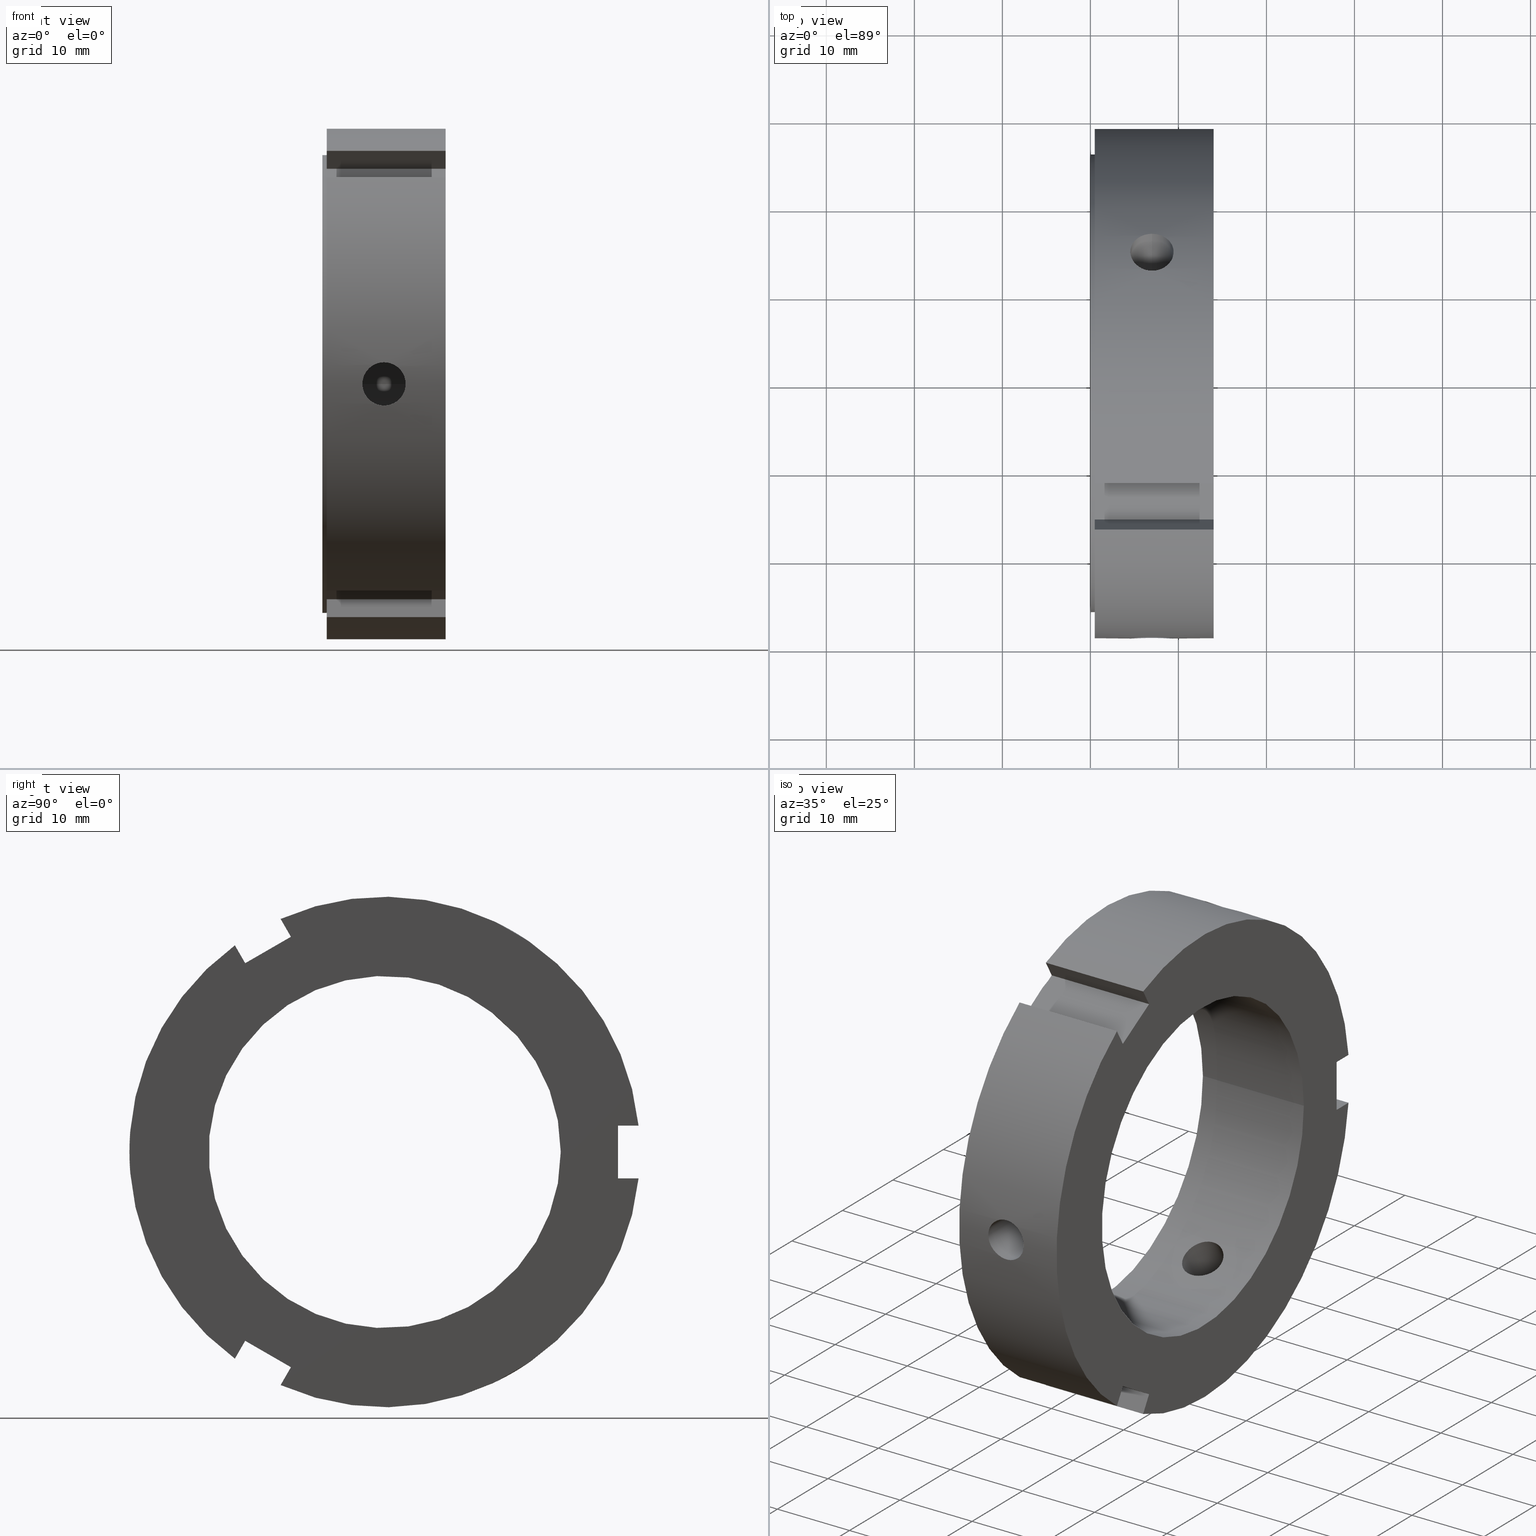
[diagram: canonical four-view strip — front | top / right | iso, engineering-drawing reading convention]
A machine part, canonical four-view strip (front | top / right | iso — engineering-drawing reading convention). The complete STEP part file that produces these views, byte-faithful:
ISO-10303-21;
HEADER;
/****************************************************************
 * Generated by software with PDE/Lib inside                    *
 * PDElib Version v51a, created Thu 01/14/2010                  *
 * ITI Transcendata (http://www.transcendata.com/)              *
 ****************************************************************/
FILE_DESCRIPTION((''),'2;1');
FILE_NAME('\\\\CAD-SVN\\cad-svn\\\X2\628088538AB2\X0\\\FKD\X2\88FD4F5C\X0\SP\\\X2\90E854C130E930A430D630E930EA\X0\\\HP \X2\30A230C330D730C730FC30C87528\X0\CAD\X2\30C730FC30BFFF0867007D42FF09\X0\\\3D data\\ZMT\\FKD ZMT 40.stp','2014-07-16T14:45:17',('fkd-ct1n'),(''),'Autodesk Inventor 2011','Autodesk Inventor 2011','');
FILE_SCHEMA(('AUTOMOTIVE_DESIGN { 1 0 10303 214 1 1 1 1 }'));
ENDSEC;
DATA;
#5=APPLICATION_CONTEXT('automotive design');
#6=APPLICATION_PROTOCOL_DEFINITION('International Standard','automotive_design',2001,#5);
#7=PRODUCT_CONTEXT('',#5,'mechanical');
#8=PRODUCT('FKD ZMT 40','FKD ZMT 40',$,(#7));
#9=PRODUCT_RELATED_PRODUCT_CATEGORY('part',$,(#8));
#10=PRODUCT_DEFINITION_FORMATION('',$,#8);
#11=PRODUCT_DEFINITION_CONTEXT('part definition',#5,'design');
#12=PRODUCT_DEFINITION('',$,#10,#11);
#18=(NAMED_UNIT(*)PLANE_ANGLE_UNIT()SI_UNIT($,.RADIAN.));
#19=DIMENSIONAL_EXPONENTS(0.0,0.0,0.0,0.0,0.0,0.0,0.0);
#20=PLANE_ANGLE_MEASURE_WITH_UNIT(PLANE_ANGLE_MEASURE(0.017453292500000),#18);
#24=(CONVERSION_BASED_UNIT('DEGREE',#20)NAMED_UNIT(#19)PLANE_ANGLE_UNIT());
#28=(NAMED_UNIT(*)SI_UNIT($,.STERADIAN.)SOLID_ANGLE_UNIT());
#32=(LENGTH_UNIT()NAMED_UNIT(*)SI_UNIT(.MILLI.,.METRE.));
#34=UNCERTAINTY_MEASURE_WITH_UNIT(LENGTH_MEASURE(0.010000000000000),#32,'DISTANCE_ACCURACY_VALUE','');
#36=(GEOMETRIC_REPRESENTATION_CONTEXT(3)GLOBAL_UNCERTAINTY_ASSIGNED_CONTEXT((#34))GLOBAL_UNIT_ASSIGNED_CONTEXT((#24,#28,#32))REPRESENTATION_CONTEXT('None','None'));
#37=AXIS2_PLACEMENT_3D('',#38,#39,#40);
#38=CARTESIAN_POINT('',(0.0,0.0,0.0));
#39=DIRECTION('',(0.0,0.0,1.0));
#40=DIRECTION('',(1.0,0.0,0.0));
#41=SHAPE_REPRESENTATION('',(#37),#36);
#42=PRODUCT_DEFINITION_SHAPE('','',#12);
#43=SHAPE_DEFINITION_REPRESENTATION(#42,#41);
#49=(NAMED_UNIT(*)PLANE_ANGLE_UNIT()SI_UNIT($,.RADIAN.));
#50=DIMENSIONAL_EXPONENTS(0.0,0.0,0.0,0.0,0.0,0.0,0.0);
#51=PLANE_ANGLE_MEASURE_WITH_UNIT(PLANE_ANGLE_MEASURE(0.017453292500000),#49);
#55=(CONVERSION_BASED_UNIT('DEGREE',#51)NAMED_UNIT(#50)PLANE_ANGLE_UNIT());
#59=(NAMED_UNIT(*)SI_UNIT($,.STERADIAN.)SOLID_ANGLE_UNIT());
#63=(LENGTH_UNIT()NAMED_UNIT(*)SI_UNIT(.MILLI.,.METRE.));
#65=UNCERTAINTY_MEASURE_WITH_UNIT(LENGTH_MEASURE(0.000001000000000),#63,'DISTANCE_ACCURACY_VALUE','');
#67=(GEOMETRIC_REPRESENTATION_CONTEXT(3)GLOBAL_UNCERTAINTY_ASSIGNED_CONTEXT((#65))GLOBAL_UNIT_ASSIGNED_CONTEXT((#55,#59,#63))REPRESENTATION_CONTEXT('','3D'));
#68=CARTESIAN_POINT('',(13.999999999999995,-15.848076211353330,-21.449673200287620));
#69=DIRECTION('',(0.0,-0.866025403784438,0.500000000000001));
#70=DIRECTION('',(-1.0,0.0,0.0));
#71=AXIS2_PLACEMENT_3D('',#68,#69,#70);
#72=PLANE('',#71);
#73=CARTESIAN_POINT('',(0.499999999999994,-15.848076211353330,-21.449673200287620));
#74=VERTEX_POINT('',#73);
#75=CARTESIAN_POINT('',(0.499999999999994,-17.020281313209288,-23.479991993593590));
#76=VERTEX_POINT('',#75);
#77=CARTESIAN_POINT('',(0.499999999999992,-15.848076211353334,-21.449673200287624));
#78=DIRECTION('',(0.0,-0.500000000000001,-0.866025403784438));
#79=VECTOR('',#78,2.344410203711917);
#80=LINE('',#77,#79);
#81=EDGE_CURVE('',#74,#76,#80,.T.);
#82=ORIENTED_EDGE('',*,*,#81,.F.);
#83=CARTESIAN_POINT('',(13.999999999999995,-15.848076211353330,-21.449673200287620));
#84=VERTEX_POINT('',#83);
#85=CARTESIAN_POINT('',(13.999999999999995,-15.848076211353330,-21.449673200287620));
#86=DIRECTION('',(-1.0,0.0,0.0));
#87=VECTOR('',#86,13.500000000000000);
#88=LINE('',#85,#87);
#89=EDGE_CURVE('',#84,#74,#88,.T.);
#90=ORIENTED_EDGE('',*,*,#89,.F.);
#91=CARTESIAN_POINT('',(13.999999999999995,-17.020281313209288,-23.479991993593590));
#92=VERTEX_POINT('',#91);
#93=CARTESIAN_POINT('',(13.999999999999995,-17.020281313209296,-23.479991993593593));
#94=DIRECTION('',(0.0,0.500000000000000,0.866025403784439));
#95=VECTOR('',#94,2.344410203711920);
#96=LINE('',#93,#95);
#97=EDGE_CURVE('',#92,#84,#96,.T.);
#98=ORIENTED_EDGE('',*,*,#97,.F.);
#99=CARTESIAN_POINT('',(0.499999999999994,-17.020281313209288,-23.479991993593586));
#100=DIRECTION('',(1.0,0.0,0.0));
#101=VECTOR('',#100,13.500000000000000);
#102=LINE('',#99,#101);
#103=EDGE_CURVE('',#76,#92,#102,.T.);
#104=ORIENTED_EDGE('',*,*,#103,.F.);
#105=EDGE_LOOP('',(#82,#90,#98,#104));
#106=FACE_OUTER_BOUND('',#105,.T.);
#107=ADVANCED_FACE('',(#106),#72,.F.);
#108=CARTESIAN_POINT('',(13.999999999999995,-11.901923788646705,-26.614736709748719));
#109=DIRECTION('',(0.0,0.866025403784438,-0.500000000000001));
#110=DIRECTION('',(1.0,0.0,0.0));
#111=AXIS2_PLACEMENT_3D('',#108,#109,#110);
#112=PLANE('',#111);
#113=CARTESIAN_POINT('',(0.499999999999994,-11.824128890502656,-26.479991993593586));
#114=VERTEX_POINT('',#113);
#115=CARTESIAN_POINT('',(0.499999999999994,-10.651923788646700,-24.449673200287624));
#116=VERTEX_POINT('',#115);
#117=CARTESIAN_POINT('',(0.499999999999992,-11.824128890502664,-26.479991993593593));
#118=DIRECTION('',(0.0,0.500000000000000,0.866025403784438));
#119=VECTOR('',#118,2.344410203711912);
#120=LINE('',#117,#119);
#121=EDGE_CURVE('',#114,#116,#120,.T.);
#122=ORIENTED_EDGE('',*,*,#121,.F.);
#123=CARTESIAN_POINT('',(13.999999999999995,-11.824128890502656,-26.479991993593586));
#124=VERTEX_POINT('',#123);
#125=CARTESIAN_POINT('',(13.999999999999995,-11.824128890502656,-26.479991993593586));
#126=DIRECTION('',(-1.0,0.0,0.0));
#127=VECTOR('',#126,13.500000000000000);
#128=LINE('',#125,#127);
#129=EDGE_CURVE('',#124,#114,#128,.T.);
#130=ORIENTED_EDGE('',*,*,#129,.F.);
#131=CARTESIAN_POINT('',(13.999999999999995,-10.651923788646700,-24.449673200287624));
#132=VERTEX_POINT('',#131);
#133=CARTESIAN_POINT('',(13.999999999999995,-10.651923788646707,-24.449673200287624));
#134=DIRECTION('',(0.0,-0.500000000000000,-0.866025403784439));
#135=VECTOR('',#134,2.344410203711916);
#136=LINE('',#133,#135);
#137=EDGE_CURVE('',#132,#124,#136,.T.);
#138=ORIENTED_EDGE('',*,*,#137,.F.);
#139=CARTESIAN_POINT('',(13.999999999999995,-10.651923788646700,-24.449673200287624));
#140=DIRECTION('',(-1.0,0.0,0.0));
#141=VECTOR('',#140,13.500000000000000);
#142=LINE('',#139,#141);
#143=EDGE_CURVE('',#132,#116,#142,.T.);
#144=ORIENTED_EDGE('',*,*,#143,.T.);
#145=EDGE_LOOP('',(#122,#130,#138,#144));
#146=FACE_OUTER_BOUND('',#145,.T.);
#147=ADVANCED_FACE('',(#146),#112,.F.);
#148=CARTESIAN_POINT('',(13.999999999999995,-10.651923788646700,-24.449673200287624));
#149=DIRECTION('',(0.0,0.500000000000001,0.866025403784438));
#150=DIRECTION('',(0.0,-0.866025403784438,0.500000000000000));
#151=AXIS2_PLACEMENT_3D('',#148,#149,#150);
#152=PLANE('',#151);
#153=CARTESIAN_POINT('',(0.499999999999992,-10.651923788646704,-24.449673200287627));
#154=DIRECTION('',(0.0,-0.866025403784438,0.500000000000001));
#155=VECTOR('',#154,6.000000000000004);
#156=LINE('',#153,#155);
#157=EDGE_CURVE('',#116,#74,#156,.T.);
#158=ORIENTED_EDGE('',*,*,#157,.F.);
#159=ORIENTED_EDGE('',*,*,#143,.F.);
#160=CARTESIAN_POINT('',(13.999999999999995,-15.848076211353339,-21.449673200287624));
#161=DIRECTION('',(0.0,0.866025403784438,-0.500000000000000));
#162=VECTOR('',#161,6.000000000000004);
#163=LINE('',#160,#162);
#164=EDGE_CURVE('',#84,#132,#163,.T.);
#165=ORIENTED_EDGE('',*,*,#164,.F.);
#166=ORIENTED_EDGE('',*,*,#89,.T.);
#167=EDGE_LOOP('',(#158,#159,#165,#166));
#168=FACE_OUTER_BOUND('',#167,.T.);
#169=ADVANCED_FACE('',(#168),#152,.F.);
#170=CARTESIAN_POINT('',(6.999999999999994,41.551100442152276,71.968617076205291));
#171=DIRECTION('',(0.0,-0.500000000000001,-0.866025403784438));
#172=DIRECTION('',(-1.0,0.0,0.0));
#173=AXIS2_PLACEMENT_3D('',#170,#171,#172);
#174=CYLINDRICAL_SURFACE('',#173,2.458500000000000);
#175=CARTESIAN_POINT('',(6.999999999999994,16.576924133421485,23.795074832300671));
#176=VERTEX_POINT('',#175);
#177=CARTESIAN_POINT('',(6.999999999999994,16.576924133421482,23.795074832300664));
#178=CARTESIAN_POINT('',(7.308854109261286,16.576924133421482,23.795074832300664));
#179=CARTESIAN_POINT('',(7.638193209310600,16.526173710312712,23.830682386971436));
#180=CARTESIAN_POINT('',(8.243872746317132,16.318706258117345,23.973228121055243));
#181=CARTESIAN_POINT('',(8.520225825376883,16.161853221030182,24.079914487860226));
#182=CARTESIAN_POINT('',(8.956617835114848,15.797030106812811,24.320806337736158));
#183=CARTESIAN_POINT('',(9.145800030290948,15.564673501506839,24.471059387746251));
#184=CARTESIAN_POINT('',(9.396745207676926,15.049971309549328,24.790929235256701));
#185=CARTESIAN_POINT('',(9.458499999999994,14.767475035670753,24.960309925902706));
#186=CARTESIAN_POINT('',(9.458499999999994,14.232524964329274,25.269163493594718));
#187=CARTESIAN_POINT('',(9.396745207676927,13.944588846379993,25.429122097925013));
#188=CARTESIAN_POINT('',(9.145800030290950,13.410222336552533,25.714932347788530));
#189=CARTESIAN_POINT('',(8.956617835114846,13.163921075594715,25.841032545715560));
#190=CARTESIAN_POINT('',(8.520225825376887,12.772891056928845,26.036532705577589));
#191=CARTESIAN_POINT('',(8.243872746317134,12.602071434494677,26.119028236953326));
#192=CARTESIAN_POINT('',(7.638193209310602,12.374889481479322,26.227427453971046));
#193=CARTESIAN_POINT('',(7.308854109261286,12.318677223013399,26.253574832300664));
#194=CARTESIAN_POINT('',(6.691145890738701,12.318677223013399,26.253574832300664));
#195=CARTESIAN_POINT('',(6.361806790689386,12.374889481479322,26.227427453971046));
#196=CARTESIAN_POINT('',(5.756127253682852,12.602071434494677,26.119028236953330));
#197=CARTESIAN_POINT('',(5.479774174623101,12.772891056928843,26.036532705577589));
#198=CARTESIAN_POINT('',(5.043382164885140,13.163921075594718,25.841032545715560));
#199=CARTESIAN_POINT('',(4.854199969709036,13.410222336552533,25.714932347788526));
#200=CARTESIAN_POINT('',(4.603254792323060,13.944588846379990,25.429122097925010));
#201=CARTESIAN_POINT('',(4.541499999999994,14.232524964329274,25.269163493594718));
#202=CARTESIAN_POINT('',(4.541499999999994,14.767475035670753,24.960309925902706));
#203=CARTESIAN_POINT('',(4.603254792323063,15.049971309549328,24.790929235256701));
#204=CARTESIAN_POINT('',(4.854199969709040,15.564673501506839,24.471059387746251));
#205=CARTESIAN_POINT('',(5.043382164885140,15.797030106812811,24.320806337736158));
#206=CARTESIAN_POINT('',(5.479774174623104,16.161853221030182,24.079914487860226));
#207=CARTESIAN_POINT('',(5.756127253682860,16.318706258117345,23.973228121055243));
#208=CARTESIAN_POINT('',(6.361806790689394,16.526173710312712,23.830682386971436));
#209=CARTESIAN_POINT('',(6.691145890738702,16.576924133421482,23.795074832300664));
#210=CARTESIAN_POINT('',(6.999999999999994,16.576924133421482,23.795074832300664));
#211=B_SPLINE_CURVE_WITH_KNOTS('',3,(#177,#178,#179,#180,#181,#182,#183,#184,#185,#186,#187,#188,#189,#190,#191,#192,#193,#194,#195,#196,#197,#198,#199,#200,#201,#202,#203,#204,#205,#206,#207,#208,#209,#210),.UNSPECIFIED.,.T.,.U.,(4,2,2,2,2,2,2,2,2,2,2,2,2,2,2,2,4),(0.0,0.092656232778388,0.185312465556775,0.277968535864379,0.370624606171983,0.463280676479586,0.555936746787190,0.648592979565578,0.741249212343965,0.833905445122353,0.926561677900741,1.019217748208344,1.111873818515948,1.204529888823552,1.297185959131155,1.389842191909543,1.482498424687931),.UNSPECIFIED.);
#212=EDGE_CURVE('',#176,#176,#211,.T.);
#213=ORIENTED_EDGE('',*,*,#212,.F.);
#214=EDGE_LOOP('',(#213));
#215=FACE_OUTER_BOUND('',#214,.T.);
#216=CARTESIAN_POINT('',(6.999999999999994,12.053283089021921,15.959898708196686));
#217=VERTEX_POINT('',#216);
#218=CARTESIAN_POINT('',(6.999999999999995,12.053283089021916,15.959898708196686));
#219=CARTESIAN_POINT('',(6.690968271254704,12.053283089021916,15.959898708196686));
#220=CARTESIAN_POINT('',(6.361553815856706,12.003722752344197,15.997705947766910));
#221=CARTESIAN_POINT('',(5.755924004486799,11.800698361727441,16.148048599668137));
#222=CARTESIAN_POINT('',(5.479681708979354,11.647038071503006,16.260210193384989));
#223=CARTESIAN_POINT('',(5.043475951151598,11.288302570213933,16.511273594329129));
#224=CARTESIAN_POINT('',(4.854320105292359,11.059187832783078,16.666921301230648));
#225=CARTESIAN_POINT('',(4.603323519938373,10.548962118054192,16.994449076431216));
#226=CARTESIAN_POINT('',(4.541499999999993,10.267627237686163,17.165993417968185));
#227=CARTESIAN_POINT('',(4.541499999999995,9.732372762313844,17.475022733409347));
#228=CARTESIAN_POINT('',(4.603323519938373,9.443143564483341,17.632893716010230));
#229=CARTESIAN_POINT('',(4.854320105292357,8.904383333350213,17.910998259029231));
#230=CARTESIAN_POINT('',(5.043475951151601,8.655031096417281,18.031593588574996));
#231=CARTESIAN_POINT('',(5.479681708979353,8.258236062594600,18.216735945458606));
#232=CARTESIAN_POINT('',(5.755924004486794,8.084271127994633,18.293728863487431));
#233=CARTESIAN_POINT('',(6.361553815856701,7.852558376867471,18.394381817398781));
#234=CARTESIAN_POINT('',(6.690968271254702,7.795036178613833,18.418398708196683));
#235=CARTESIAN_POINT('',(7.309031728745286,7.795036178613833,18.418398708196683));
#236=CARTESIAN_POINT('',(7.638446184143284,7.852558376867470,18.394381817398781));
#237=CARTESIAN_POINT('',(8.244075995513191,8.084271127994633,18.293728863487431));
#238=CARTESIAN_POINT('',(8.520318291020635,8.258236062594600,18.216735945458606));
#239=CARTESIAN_POINT('',(8.956524048848387,8.655031096417281,18.031593588574996));
#240=CARTESIAN_POINT('',(9.145679894707632,8.904383333350213,17.910998259029231));
#241=CARTESIAN_POINT('',(9.396676480061615,9.443143564483341,17.632893716010230));
#242=CARTESIAN_POINT('',(9.458499999999994,9.732372762313844,17.475022733409347));
#243=CARTESIAN_POINT('',(9.458499999999994,10.267627237686163,17.165993417968185));
#244=CARTESIAN_POINT('',(9.396676480061617,10.548962118054190,16.994449076431216));
#245=CARTESIAN_POINT('',(9.145679894707630,11.059187832783078,16.666921301230651));
#246=CARTESIAN_POINT('',(8.956524048848388,11.288302570213933,16.511273594329133));
#247=CARTESIAN_POINT('',(8.520318291020633,11.647038071503006,16.260210193384989));
#248=CARTESIAN_POINT('',(8.244075995513189,11.800698361727445,16.148048599668133));
#249=CARTESIAN_POINT('',(7.638446184143280,12.003722752344197,15.997705947766907));
#250=CARTESIAN_POINT('',(7.309031728745286,12.053283089021917,15.959898708196684));
#251=CARTESIAN_POINT('',(6.999999999999995,12.053283089021917,15.959898708196684));
#252=B_SPLINE_CURVE_WITH_KNOTS('',3,(#218,#219,#220,#221,#222,#223,#224,#225,#226,#227,#228,#229,#230,#231,#232,#233,#234,#235,#236,#237,#238,#239,#240,#241,#242,#243,#244,#245,#246,#247,#248,#249,#250,#251),.UNSPECIFIED.,.T.,.U.,(4,2,2,2,2,2,2,2,2,2,2,2,2,2,2,2,4),(0.0,0.092709518623587,0.185419037247175,0.278127831879523,0.370836626511872,0.463545421144219,0.556254215776567,0.648963734400154,0.741673253023742,0.834382771647329,0.927092290270916,1.019801084903264,1.112509879535611,1.205218674167960,1.297927468800308,1.390636987423896,1.483346506047483),.UNSPECIFIED.);
#253=EDGE_CURVE('',#217,#217,#252,.T.);
#254=ORIENTED_EDGE('',*,*,#253,.F.);
#255=EDGE_LOOP('',(#254));
#256=FACE_BOUND('',#255,.T.);
#257=ADVANCED_FACE('',(#215,#256),#174,.F.);
#258=CARTESIAN_POINT('',(13.999999999999995,-10.651923788646682,24.449673200287631));
#259=DIRECTION('',(0.0,0.866025403784439,0.500000000000000));
#260=DIRECTION('',(-1.0,0.0,0.0));
#261=AXIS2_PLACEMENT_3D('',#258,#259,#260);
#262=PLANE('',#261);
#263=CARTESIAN_POINT('',(0.499999999999994,-10.651923788646682,24.449673200287631));
#264=VERTEX_POINT('',#263);
#265=CARTESIAN_POINT('',(0.499999999999994,-11.824128890502639,26.479991993593597));
#266=VERTEX_POINT('',#265);
#267=CARTESIAN_POINT('',(0.499999999999993,-10.651923788646686,24.449673200287634));
#268=DIRECTION('',(0.0,-0.499999999999999,0.866025403784439));
#269=VECTOR('',#268,2.344410203711914);
#270=LINE('',#267,#269);
#271=EDGE_CURVE('',#264,#266,#270,.T.);
#272=ORIENTED_EDGE('',*,*,#271,.F.);
#273=CARTESIAN_POINT('',(13.999999999999995,-10.651923788646682,24.449673200287631));
#274=VERTEX_POINT('',#273);
#275=CARTESIAN_POINT('',(13.999999999999995,-10.651923788646682,24.449673200287631));
#276=DIRECTION('',(-1.0,0.0,0.0));
#277=VECTOR('',#276,13.500000000000000);
#278=LINE('',#275,#277);
#279=EDGE_CURVE('',#274,#264,#278,.T.);
#280=ORIENTED_EDGE('',*,*,#279,.F.);
#281=CARTESIAN_POINT('',(13.999999999999995,-11.824128890502639,26.479991993593597));
#282=VERTEX_POINT('',#281);
#283=CARTESIAN_POINT('',(13.999999999999995,-11.824128890502640,26.479991993593600));
#284=DIRECTION('',(0.0,0.500000000000000,-0.866025403784439));
#285=VECTOR('',#284,2.344410203711911);
#286=LINE('',#283,#285);
#287=EDGE_CURVE('',#282,#274,#286,.T.);
#288=ORIENTED_EDGE('',*,*,#287,.F.);
#289=CARTESIAN_POINT('',(0.499999999999994,-11.824128890502639,26.479991993593597));
#290=DIRECTION('',(1.0,0.0,0.0));
#291=VECTOR('',#290,13.500000000000000);
#292=LINE('',#289,#291);
#293=EDGE_CURVE('',#266,#282,#292,.T.);
#294=ORIENTED_EDGE('',*,*,#293,.F.);
#295=EDGE_LOOP('',(#272,#280,#288,#294));
#296=FACE_OUTER_BOUND('',#295,.T.);
#297=ADVANCED_FACE('',(#296),#262,.F.);
#298=CARTESIAN_POINT('',(13.999999999999995,-17.098076211353312,23.614736709748733));
#299=DIRECTION('',(0.0,-0.866025403784439,-0.500000000000000));
#300=DIRECTION('',(1.0,0.0,0.0));
#301=AXIS2_PLACEMENT_3D('',#298,#299,#300);
#302=PLANE('',#301);
#303=CARTESIAN_POINT('',(0.499999999999994,-17.020281313209267,23.479991993593600));
#304=VERTEX_POINT('',#303);
#305=CARTESIAN_POINT('',(0.499999999999994,-15.848076211353312,21.449673200287634));
#306=VERTEX_POINT('',#305);
#307=CARTESIAN_POINT('',(0.499999999999993,-17.020281313209267,23.479991993593600));
#308=DIRECTION('',(0.0,0.499999999999999,-0.866025403784439));
#309=VECTOR('',#308,2.344410203711910);
#310=LINE('',#307,#309);
#311=EDGE_CURVE('',#304,#306,#310,.T.);
#312=ORIENTED_EDGE('',*,*,#311,.F.);
#313=CARTESIAN_POINT('',(13.999999999999995,-17.020281313209267,23.479991993593600));
#314=VERTEX_POINT('',#313);
#315=CARTESIAN_POINT('',(13.999999999999995,-17.020281313209267,23.479991993593600));
#316=DIRECTION('',(-1.0,0.0,0.0));
#317=VECTOR('',#316,13.500000000000000);
#318=LINE('',#315,#317);
#319=EDGE_CURVE('',#314,#304,#318,.T.);
#320=ORIENTED_EDGE('',*,*,#319,.F.);
#321=CARTESIAN_POINT('',(13.999999999999995,-15.848076211353312,21.449673200287634));
#322=VERTEX_POINT('',#321);
#323=CARTESIAN_POINT('',(13.999999999999995,-15.848076211353316,21.449673200287638));
#324=DIRECTION('',(0.0,-0.500000000000000,0.866025403784438));
#325=VECTOR('',#324,2.344410203711908);
#326=LINE('',#323,#325);
#327=EDGE_CURVE('',#322,#314,#326,.T.);
#328=ORIENTED_EDGE('',*,*,#327,.F.);
#329=CARTESIAN_POINT('',(13.999999999999995,-15.848076211353312,21.449673200287634));
#330=DIRECTION('',(-1.0,0.0,0.0));
#331=VECTOR('',#330,13.500000000000000);
#332=LINE('',#329,#331);
#333=EDGE_CURVE('',#322,#306,#332,.T.);
#334=ORIENTED_EDGE('',*,*,#333,.T.);
#335=EDGE_LOOP('',(#312,#320,#328,#334));
#336=FACE_OUTER_BOUND('',#335,.T.);
#337=ADVANCED_FACE('',(#336),#302,.F.);
#338=CARTESIAN_POINT('',(13.999999999999995,-15.848076211353312,21.449673200287634));
#339=DIRECTION('',(0.0,0.500000000000000,-0.866025403784439));
#340=DIRECTION('',(0.0,0.866025403784439,0.500000000000000));
#341=AXIS2_PLACEMENT_3D('',#338,#339,#340);
#342=PLANE('',#341);
#343=CARTESIAN_POINT('',(0.499999999999993,-15.848076211353314,21.449673200287634));
#344=DIRECTION('',(0.0,0.866025403784439,0.500000000000000));
#345=VECTOR('',#344,5.999999999999996);
#346=LINE('',#343,#345);
#347=EDGE_CURVE('',#306,#264,#346,.T.);
#348=ORIENTED_EDGE('',*,*,#347,.F.);
#349=ORIENTED_EDGE('',*,*,#333,.F.);
#350=CARTESIAN_POINT('',(13.999999999999995,-10.651923788646684,24.449673200287631));
#351=DIRECTION('',(0.0,-0.866025403784439,-0.500000000000000));
#352=VECTOR('',#351,5.999999999999998);
#353=LINE('',#350,#352);
#354=EDGE_CURVE('',#274,#322,#353,.T.);
#355=ORIENTED_EDGE('',*,*,#354,.F.);
#356=ORIENTED_EDGE('',*,*,#279,.T.);
#357=EDGE_LOOP('',(#348,#349,#355,#356));
#358=FACE_OUTER_BOUND('',#357,.T.);
#359=ADVANCED_FACE('',(#358),#342,.F.);
#360=CARTESIAN_POINT('',(6.999999999999994,41.551100442152212,-71.968617076205319));
#361=DIRECTION('',(0.0,-0.500000000000000,0.866025403784439));
#362=DIRECTION('',(-1.0,0.0,0.0));
#363=AXIS2_PLACEMENT_3D('',#360,#361,#362);
#364=CYLINDRICAL_SURFACE('',#363,2.458500000000000);
#365=CARTESIAN_POINT('',(6.999999999999994,12.318677223013383,-26.253574832300679));
#366=VERTEX_POINT('',#365);
#367=CARTESIAN_POINT('',(6.999999999999995,12.318677223013378,-26.253574832300679));
#368=CARTESIAN_POINT('',(7.308854109261288,12.318677223013378,-26.253574832300679));
#369=CARTESIAN_POINT('',(7.638193209310603,12.374889481479299,-26.227427453971053));
#370=CARTESIAN_POINT('',(8.243872746317136,12.602071434494654,-26.119028236953341));
#371=CARTESIAN_POINT('',(8.520225825376887,12.772891056928824,-26.036532705577606));
#372=CARTESIAN_POINT('',(8.956617835114848,13.163921075594693,-25.841032545715574));
#373=CARTESIAN_POINT('',(9.145800030290953,13.410222336552518,-25.714932347788533));
#374=CARTESIAN_POINT('',(9.396745207676929,13.944588846379975,-25.429122097925017));
#375=CARTESIAN_POINT('',(9.458499999999994,14.232524964329256,-25.269163493594739));
#376=CARTESIAN_POINT('',(9.458499999999994,14.767475035670738,-24.960309925902724));
#377=CARTESIAN_POINT('',(9.396745207676926,15.049971309549306,-24.790929235256716));
#378=CARTESIAN_POINT('',(9.145800030290948,15.564673501506817,-24.471059387746266));
#379=CARTESIAN_POINT('',(8.956617835114848,15.797030106812793,-24.320806337736162));
#380=CARTESIAN_POINT('',(8.520225825376883,16.161853221030164,-24.079914487860229));
#381=CARTESIAN_POINT('',(8.243872746317130,16.318706258117327,-23.973228121055254));
#382=CARTESIAN_POINT('',(7.638193209310598,16.526173710312694,-23.830682386971450));
#383=CARTESIAN_POINT('',(7.308854109261286,16.576924133421471,-23.795074832300674));
#384=CARTESIAN_POINT('',(6.691145890738702,16.576924133421471,-23.795074832300674));
#385=CARTESIAN_POINT('',(6.361806790689391,16.526173710312694,-23.830682386971450));
#386=CARTESIAN_POINT('',(5.756127253682858,16.318706258117327,-23.973228121055254));
#387=CARTESIAN_POINT('',(5.479774174623104,16.161853221030164,-24.079914487860229));
#388=CARTESIAN_POINT('',(5.043382164885140,15.797030106812793,-24.320806337736162));
#389=CARTESIAN_POINT('',(4.854199969709041,15.564673501506817,-24.471059387746266));
#390=CARTESIAN_POINT('',(4.603254792323063,15.049971309549306,-24.790929235256716));
#391=CARTESIAN_POINT('',(4.541499999999994,14.767475035670738,-24.960309925902724));
#392=CARTESIAN_POINT('',(4.541499999999994,14.232524964329258,-25.269163493594739));
#393=CARTESIAN_POINT('',(4.603254792323060,13.944588846379972,-25.429122097925017));
#394=CARTESIAN_POINT('',(4.854199969709036,13.410222336552513,-25.714932347788533));
#395=CARTESIAN_POINT('',(5.043382164885140,13.163921075594695,-25.841032545715574));
#396=CARTESIAN_POINT('',(5.479774174623103,12.772891056928824,-26.036532705577606));
#397=CARTESIAN_POINT('',(5.756127253682857,12.602071434494652,-26.119028236953341));
#398=CARTESIAN_POINT('',(6.361806790689389,12.374889481479297,-26.227427453971053));
#399=CARTESIAN_POINT('',(6.691145890738702,12.318677223013379,-26.253574832300679));
#400=CARTESIAN_POINT('',(6.999999999999994,12.318677223013379,-26.253574832300679));
#401=B_SPLINE_CURVE_WITH_KNOTS('',3,(#367,#368,#369,#370,#371,#372,#373,#374,#375,#376,#377,#378,#379,#380,#381,#382,#383,#384,#385,#386,#387,#388,#389,#390,#391,#392,#393,#394,#395,#396,#397,#398,#399,#400),.UNSPECIFIED.,.T.,.U.,(4,2,2,2,2,2,2,2,2,2,2,2,2,2,2,2,4),(0.0,0.092656232778388,0.185312465556775,0.277968535864379,0.370624606171983,0.463280676479587,0.555936746787191,0.648592979565578,0.741249212343966,0.833905445122353,0.926561677900741,1.019217748208345,1.111873818515949,1.204529888823553,1.297185959131156,1.389842191909544,1.482498424687932),.UNSPECIFIED.);
#402=EDGE_CURVE('',#366,#366,#401,.T.);
#403=ORIENTED_EDGE('',*,*,#402,.F.);
#404=EDGE_LOOP('',(#403));
#405=FACE_OUTER_BOUND('',#404,.T.);
#406=CARTESIAN_POINT('',(6.999999999999994,7.795036178613822,-18.418398708196694));
#407=VERTEX_POINT('',#406);
#408=CARTESIAN_POINT('',(6.999999999999994,7.795036178613817,-18.418398708196694));
#409=CARTESIAN_POINT('',(6.690968271254702,7.795036178613817,-18.418398708196694));
#410=CARTESIAN_POINT('',(6.361553815856703,7.852558376867456,-18.394381817398788));
#411=CARTESIAN_POINT('',(5.755924004486797,8.084271127994617,-18.293728863487438));
#412=CARTESIAN_POINT('',(5.479681708979354,8.258236062594582,-18.216735945458616));
#413=CARTESIAN_POINT('',(5.043475951151599,8.655031096417263,-18.031593588575006));
#414=CARTESIAN_POINT('',(4.854320105292358,8.904383333350197,-17.910998259029242));
#415=CARTESIAN_POINT('',(4.603323519938374,9.443143564483329,-17.632893716010237));
#416=CARTESIAN_POINT('',(4.541499999999994,9.732372762313835,-17.475022733409354));
#417=CARTESIAN_POINT('',(4.541499999999994,10.267627237686154,-17.165993417968195));
#418=CARTESIAN_POINT('',(4.603323519938373,10.548962118054179,-16.994449076431220));
#419=CARTESIAN_POINT('',(4.854320105292361,11.059187832783063,-16.666921301230651));
#420=CARTESIAN_POINT('',(5.043475951151598,11.288302570213919,-16.511273594329133));
#421=CARTESIAN_POINT('',(5.479681708979354,11.647038071502990,-16.260210193384989));
#422=CARTESIAN_POINT('',(5.755924004486799,11.800698361727429,-16.148048599668144));
#423=CARTESIAN_POINT('',(6.361553815856704,12.003722752344180,-15.997705947766915));
#424=CARTESIAN_POINT('',(6.690968271254704,12.053283089021907,-15.959898708196686));
#425=CARTESIAN_POINT('',(7.309031728745285,12.053283089021908,-15.959898708196690));
#426=CARTESIAN_POINT('',(7.638446184143282,12.003722752344180,-15.997705947766915));
#427=CARTESIAN_POINT('',(8.244075995513189,11.800698361727429,-16.148048599668144));
#428=CARTESIAN_POINT('',(8.520318291020633,11.647038071502994,-16.260210193384992));
#429=CARTESIAN_POINT('',(8.956524048848388,11.288302570213919,-16.511273594329133));
#430=CARTESIAN_POINT('',(9.145679894707628,11.059187832783067,-16.666921301230659));
#431=CARTESIAN_POINT('',(9.396676480061615,10.548962118054179,-16.994449076431223));
#432=CARTESIAN_POINT('',(9.458499999999994,10.267627237686156,-17.165993417968195));
#433=CARTESIAN_POINT('',(9.458499999999994,9.732372762313835,-17.475022733409354));
#434=CARTESIAN_POINT('',(9.396676480061615,9.443143564483329,-17.632893716010237));
#435=CARTESIAN_POINT('',(9.145679894707632,8.904383333350197,-17.910998259029242));
#436=CARTESIAN_POINT('',(8.956524048848388,8.655031096417263,-18.031593588575006));
#437=CARTESIAN_POINT('',(8.520318291020635,8.258236062594582,-18.216735945458616));
#438=CARTESIAN_POINT('',(8.244075995513192,8.084271127994619,-18.293728863487434));
#439=CARTESIAN_POINT('',(7.638446184143286,7.852558376867456,-18.394381817398788));
#440=CARTESIAN_POINT('',(7.309031728745286,7.795036178613817,-18.418398708196694));
#441=CARTESIAN_POINT('',(6.999999999999995,7.795036178613817,-18.418398708196694));
#442=B_SPLINE_CURVE_WITH_KNOTS('',3,(#408,#409,#410,#411,#412,#413,#414,#415,#416,#417,#418,#419,#420,#421,#422,#423,#424,#425,#426,#427,#428,#429,#430,#431,#432,#433,#434,#435,#436,#437,#438,#439,#440,#441),.UNSPECIFIED.,.T.,.U.,(4,2,2,2,2,2,2,2,2,2,2,2,2,2,2,2,4),(0.0,0.092709518623587,0.185419037247174,0.278127831879523,0.370836626511871,0.463545421144219,0.556254215776568,0.648963734400155,0.741673253023742,0.834382771647329,0.927092290270916,1.019801084903265,1.112509879535613,1.205218674167962,1.297927468800310,1.390636987423897,1.483346506047484),.UNSPECIFIED.);
#443=EDGE_CURVE('',#407,#407,#442,.T.);
#444=ORIENTED_EDGE('',*,*,#443,.F.);
#445=EDGE_LOOP('',(#444));
#446=FACE_BOUND('',#445,.T.);
#447=ADVANCED_FACE('',(#405,#446),#364,.F.);
#448=CARTESIAN_POINT('',(13.999999999999995,24.500000000000000,0.0));
#449=DIRECTION('',(1.0,0.0,0.0));
#450=DIRECTION('',(0.0,0.0,-1.0));
#451=AXIS2_PLACEMENT_3D('',#448,#449,#450);
#452=PLANE('',#451);
#453=ORIENTED_EDGE('',*,*,#97,.T.);
#454=ORIENTED_EDGE('',*,*,#164,.T.);
#455=ORIENTED_EDGE('',*,*,#137,.T.);
#456=CARTESIAN_POINT('',(13.999999999999995,28.844410203711917,-2.999999999999999));
#457=VERTEX_POINT('',#456);
#458=CARTESIAN_POINT('',(13.999999999999995,0.0,0.0));
#459=DIRECTION('',(1.0,0.0,0.0));
#460=DIRECTION('',(0.0,1.0,0.0));
#461=AXIS2_PLACEMENT_3D('',#458,#459,#460);
#462=CIRCLE('',#461,29.000000000000004);
#463=EDGE_CURVE('',#124,#457,#462,.T.);
#464=ORIENTED_EDGE('',*,*,#463,.T.);
#465=CARTESIAN_POINT('',(13.999999999999995,26.500000000000004,-2.999999999999999));
#466=VERTEX_POINT('',#465);
#467=CARTESIAN_POINT('',(13.999999999999995,28.844410203711917,-2.999999999999999));
#468=DIRECTION('',(0.0,-1.0,0.0));
#469=VECTOR('',#468,2.344410203711913);
#470=LINE('',#467,#469);
#471=EDGE_CURVE('',#457,#466,#470,.T.);
#472=ORIENTED_EDGE('',*,*,#471,.T.);
#473=CARTESIAN_POINT('',(13.999999999999995,26.500000000000004,2.999999999999999));
#474=VERTEX_POINT('',#473);
#475=CARTESIAN_POINT('',(13.999999999999995,26.500000000000004,-3.000000000000000));
#476=DIRECTION('',(0.0,0.0,1.0));
#477=VECTOR('',#476,5.999999999999998);
#478=LINE('',#475,#477);
#479=EDGE_CURVE('',#466,#474,#478,.T.);
#480=ORIENTED_EDGE('',*,*,#479,.T.);
#481=CARTESIAN_POINT('',(13.999999999999995,28.844410203711917,2.999999999999999));
#482=VERTEX_POINT('',#481);
#483=CARTESIAN_POINT('',(13.999999999999995,26.500000000000004,2.999999999999999));
#484=DIRECTION('',(0.0,1.0,0.0));
#485=VECTOR('',#484,2.344410203711913);
#486=LINE('',#483,#485);
#487=EDGE_CURVE('',#474,#482,#486,.T.);
#488=ORIENTED_EDGE('',*,*,#487,.T.);
#489=CARTESIAN_POINT('',(13.999999999999995,0.0,0.0));
#490=DIRECTION('',(1.0,0.0,0.0));
#491=DIRECTION('',(0.0,1.0,0.0));
#492=AXIS2_PLACEMENT_3D('',#489,#490,#491);
#493=CIRCLE('',#492,29.000000000000004);
#494=EDGE_CURVE('',#482,#282,#493,.T.);
#495=ORIENTED_EDGE('',*,*,#494,.T.);
#496=ORIENTED_EDGE('',*,*,#287,.T.);
#497=ORIENTED_EDGE('',*,*,#354,.T.);
#498=ORIENTED_EDGE('',*,*,#327,.T.);
#499=CARTESIAN_POINT('',(13.999999999999995,0.0,0.0));
#500=DIRECTION('',(1.0,0.0,0.0));
#501=DIRECTION('',(0.0,1.0,0.0));
#502=AXIS2_PLACEMENT_3D('',#499,#500,#501);
#503=CIRCLE('',#502,29.000000000000004);
#504=EDGE_CURVE('',#314,#92,#503,.T.);
#505=ORIENTED_EDGE('',*,*,#504,.T.);
#506=EDGE_LOOP('',(#453,#454,#455,#464,#472,#480,#488,#495,#496,#497,#498,#505));
#507=FACE_OUTER_BOUND('',#506,.T.);
#508=CARTESIAN_POINT('',(13.999999999999995,20.0,0.0));
#509=VERTEX_POINT('',#508);
#510=CARTESIAN_POINT('',(13.999999999999995,0.0,0.0));
#511=DIRECTION('',(1.0,0.0,0.0));
#512=DIRECTION('',(0.0,1.0,0.0));
#513=AXIS2_PLACEMENT_3D('',#510,#511,#512);
#514=CIRCLE('',#513,20.0);
#515=EDGE_CURVE('',#509,#509,#514,.T.);
#516=ORIENTED_EDGE('',*,*,#515,.F.);
#517=EDGE_LOOP('',(#516));
#518=FACE_BOUND('',#517,.T.);
#519=ADVANCED_FACE('',(#507,#518),#452,.T.);
#520=CARTESIAN_POINT('',(7.249999999999995,0.0,0.0));
#521=DIRECTION('',(1.0,0.0,0.0));
#522=DIRECTION('',(0.0,1.0,0.0));
#523=AXIS2_PLACEMENT_3D('',#520,#521,#522);
#524=CYLINDRICAL_SURFACE('',#523,29.000000000000004);
#525=ORIENTED_EDGE('',*,*,#293,.T.);
#526=ORIENTED_EDGE('',*,*,#494,.F.);
#527=CARTESIAN_POINT('',(0.499999999999994,28.844410203711917,2.999999999999999));
#528=VERTEX_POINT('',#527);
#529=CARTESIAN_POINT('',(13.999999999999995,28.844410203711917,2.999999999999999));
#530=DIRECTION('',(-1.0,0.0,0.0));
#531=VECTOR('',#530,13.500000000000000);
#532=LINE('',#529,#531);
#533=EDGE_CURVE('',#482,#528,#532,.T.);
#534=ORIENTED_EDGE('',*,*,#533,.T.);
#535=CARTESIAN_POINT('',(0.499999999999994,0.0,0.0));
#536=DIRECTION('',(1.0,0.0,0.0));
#537=DIRECTION('',(0.0,1.0,0.0));
#538=AXIS2_PLACEMENT_3D('',#535,#536,#537);
#539=CIRCLE('',#538,29.0);
#540=EDGE_CURVE('',#528,#266,#539,.T.);
#541=ORIENTED_EDGE('',*,*,#540,.T.);
#542=EDGE_LOOP('',(#525,#526,#534,#541));
#543=FACE_OUTER_BOUND('',#542,.T.);
#544=ORIENTED_EDGE('',*,*,#212,.T.);
#545=EDGE_LOOP('',(#544));
#546=FACE_BOUND('',#545,.T.);
#547=ADVANCED_FACE('',(#543,#546),#524,.T.);
#548=CARTESIAN_POINT('',(7.249999999999995,0.0,0.0));
#549=DIRECTION('',(1.0,0.0,0.0));
#550=DIRECTION('',(0.0,1.0,0.0));
#551=AXIS2_PLACEMENT_3D('',#548,#549,#550);
#552=CYLINDRICAL_SURFACE('',#551,29.000000000000004);
#553=ORIENTED_EDGE('',*,*,#129,.T.);
#554=CARTESIAN_POINT('',(0.499999999999994,28.844410203711917,-2.999999999999999));
#555=VERTEX_POINT('',#554);
#556=CARTESIAN_POINT('',(0.499999999999994,0.0,0.0));
#557=DIRECTION('',(1.0,0.0,0.0));
#558=DIRECTION('',(0.0,1.0,0.0));
#559=AXIS2_PLACEMENT_3D('',#556,#557,#558);
#560=CIRCLE('',#559,29.0);
#561=EDGE_CURVE('',#114,#555,#560,.T.);
#562=ORIENTED_EDGE('',*,*,#561,.T.);
#563=CARTESIAN_POINT('',(0.499999999999994,28.844410203711917,-2.999999999999999));
#564=DIRECTION('',(1.0,0.0,0.0));
#565=VECTOR('',#564,13.500000000000000);
#566=LINE('',#563,#565);
#567=EDGE_CURVE('',#555,#457,#566,.T.);
#568=ORIENTED_EDGE('',*,*,#567,.T.);
#569=ORIENTED_EDGE('',*,*,#463,.F.);
#570=EDGE_LOOP('',(#553,#562,#568,#569));
#571=FACE_OUTER_BOUND('',#570,.T.);
#572=ORIENTED_EDGE('',*,*,#402,.T.);
#573=EDGE_LOOP('',(#572));
#574=FACE_BOUND('',#573,.T.);
#575=ADVANCED_FACE('',(#571,#574),#552,.T.);
#576=CARTESIAN_POINT('',(7.249999999999995,0.0,0.0));
#577=DIRECTION('',(1.0,0.0,0.0));
#578=DIRECTION('',(0.0,1.0,0.0));
#579=AXIS2_PLACEMENT_3D('',#576,#577,#578);
#580=CYLINDRICAL_SURFACE('',#579,29.000000000000004);
#581=ORIENTED_EDGE('',*,*,#103,.T.);
#582=ORIENTED_EDGE('',*,*,#504,.F.);
#583=ORIENTED_EDGE('',*,*,#319,.T.);
#584=CARTESIAN_POINT('',(0.499999999999994,0.0,0.0));
#585=DIRECTION('',(1.0,0.0,0.0));
#586=DIRECTION('',(0.0,1.0,0.0));
#587=AXIS2_PLACEMENT_3D('',#584,#585,#586);
#588=CIRCLE('',#587,29.0);
#589=EDGE_CURVE('',#304,#76,#588,.T.);
#590=ORIENTED_EDGE('',*,*,#589,.T.);
#591=EDGE_LOOP('',(#581,#582,#583,#590));
#592=FACE_OUTER_BOUND('',#591,.T.);
#593=CARTESIAN_POINT('',(6.999999999999994,-28.895601356434859,2.458500000000000));
#594=VERTEX_POINT('',#593);
#595=CARTESIAN_POINT('',(6.999999999999994,-28.895601356434859,2.458500000000000));
#596=CARTESIAN_POINT('',(7.308854109261286,-28.895601356434859,2.458500000000000));
#597=CARTESIAN_POINT('',(7.638193209310602,-28.901063191792002,2.396745066999606));
#598=CARTESIAN_POINT('',(8.243872746317134,-28.920777692611995,2.145800115898084));
#599=CARTESIAN_POINT('',(8.520225825376887,-28.934744277958998,1.956618217717363));
#600=CARTESIAN_POINT('',(8.956617835114848,-28.960951182407506,1.520226207979401));
#601=CARTESIAN_POINT('',(9.145800030290950,-28.974895838059354,1.243872960042270));
#602=CARTESIAN_POINT('',(9.396745207676927,-28.994560155929292,0.638192862668306));
#603=CARTESIAN_POINT('',(9.458499999999994,-29.000000000000004,0.308853567692012));
#604=CARTESIAN_POINT('',(9.458499999999994,-29.000000000000004,-0.308853567692012));
#605=CARTESIAN_POINT('',(9.396745207676926,-28.994560155929292,-0.638192862668306));
#606=CARTESIAN_POINT('',(9.145800030290950,-28.974895838059354,-1.243872960042270));
#607=CARTESIAN_POINT('',(8.956617835114848,-28.960951182407499,-1.520226207979400));
#608=CARTESIAN_POINT('',(8.520225825376887,-28.934744277958998,-1.956618217717363));
#609=CARTESIAN_POINT('',(8.243872746317134,-28.920777692611995,-2.145800115898084));
#610=CARTESIAN_POINT('',(7.638193209310602,-28.901063191792002,-2.396745066999606));
#611=CARTESIAN_POINT('',(7.308854109261286,-28.895601356434859,-2.458500000000000));
#612=CARTESIAN_POINT('',(6.691145890738701,-28.895601356434859,-2.458500000000000));
#613=CARTESIAN_POINT('',(6.361806790689386,-28.901063191792002,-2.396745066999606));
#614=CARTESIAN_POINT('',(5.756127253682855,-28.920777692611995,-2.145800115898084));
#615=CARTESIAN_POINT('',(5.479774174623103,-28.934744277958998,-1.956618217717363));
#616=CARTESIAN_POINT('',(5.043382164885141,-28.960951182407506,-1.520226207979401));
#617=CARTESIAN_POINT('',(4.854199969709037,-28.974895838059354,-1.243872960042271));
#618=CARTESIAN_POINT('',(4.603254792323060,-28.994560155929300,-0.638192862668308));
#619=CARTESIAN_POINT('',(4.541499999999994,-29.000000000000004,-0.308853567692013));
#620=CARTESIAN_POINT('',(4.541499999999994,-29.000000000000004,0.308853567692011));
#621=CARTESIAN_POINT('',(4.603254792323061,-28.994560155929292,0.638192862668306));
#622=CARTESIAN_POINT('',(4.854199969709037,-28.974895838059354,1.243872960042270));
#623=CARTESIAN_POINT('',(5.043382164885141,-28.960951182407499,1.520226207979400));
#624=CARTESIAN_POINT('',(5.479774174623103,-28.934744277959005,1.956618217717362));
#625=CARTESIAN_POINT('',(5.756127253682855,-28.920777692611995,2.145800115898084));
#626=CARTESIAN_POINT('',(6.361806790689386,-28.901063191792002,2.396745066999606));
#627=CARTESIAN_POINT('',(6.691145890738701,-28.895601356434859,2.458500000000000));
#628=CARTESIAN_POINT('',(6.999999999999994,-28.895601356434859,2.458500000000000));
#629=B_SPLINE_CURVE_WITH_KNOTS('',3,(#595,#596,#597,#598,#599,#600,#601,#602,#603,#604,#605,#606,#607,#608,#609,#610,#611,#612,#613,#614,#615,#616,#617,#618,#619,#620,#621,#622,#623,#624,#625,#626,#627,#628),.UNSPECIFIED.,.T.,.U.,(4,2,2,2,2,2,2,2,2,2,2,2,2,2,2,2,4),(0.0,0.092656232778388,0.185312465556775,0.277968535864379,0.370624606171982,0.463280676479586,0.555936746787190,0.648592979565577,0.741249212343965,0.833905445122353,0.926561677900740,1.019217748208344,1.111873818515947,1.204529888823551,1.297185959131154,1.389842191909542,1.482498424687930),.UNSPECIFIED.);
#630=EDGE_CURVE('',#594,#594,#629,.T.);
#631=ORIENTED_EDGE('',*,*,#630,.T.);
#632=EDGE_LOOP('',(#631));
#633=FACE_BOUND('',#632,.T.);
#634=ADVANCED_FACE('',(#592,#633),#580,.T.);
#635=CARTESIAN_POINT('',(6.999999999999994,-83.102200884304466,0.0));
#636=DIRECTION('',(0.0,1.0,0.0));
#637=DIRECTION('',(-1.0,0.0,0.0));
#638=AXIS2_PLACEMENT_3D('',#635,#636,#637);
#639=CYLINDRICAL_SURFACE('',#638,2.458500000000000);
#640=ORIENTED_EDGE('',*,*,#630,.F.);
#641=EDGE_LOOP('',(#640));
#642=FACE_OUTER_BOUND('',#641,.T.);
#643=CARTESIAN_POINT('',(6.999999999999994,-19.848319267635738,2.458500000000000));
#644=VERTEX_POINT('',#643);
#645=CARTESIAN_POINT('',(6.999999999999994,-19.848319267635738,2.458500000000000));
#646=CARTESIAN_POINT('',(6.690968271254704,-19.848319267635738,2.458500000000000));
#647=CARTESIAN_POINT('',(6.361553815856703,-19.856281129211652,2.396675869631872));
#648=CARTESIAN_POINT('',(5.755924004486797,-19.884969489722057,2.145680263819294));
#649=CARTESIAN_POINT('',(5.479681708979354,-19.905274134097589,1.956525752073613));
#650=CARTESIAN_POINT('',(5.043475951151599,-19.943333666631201,1.520319994245860));
#651=CARTESIAN_POINT('',(4.854320105292358,-19.963571166133274,1.244076957798581));
#652=CARTESIAN_POINT('',(4.603323519938372,-19.992105682537520,0.638444639579012));
#653=CARTESIAN_POINT('',(4.541499999999994,-20.0,0.309029315441160));
#654=CARTESIAN_POINT('',(4.541499999999994,-20.0,-0.309029315441160));
#655=CARTESIAN_POINT('',(4.603323519938372,-19.992105682537520,-0.638444639579012));
#656=CARTESIAN_POINT('',(4.854320105292358,-19.963571166133274,-1.244076957798581));
#657=CARTESIAN_POINT('',(5.043475951151599,-19.943333666631201,-1.520319994245860));
#658=CARTESIAN_POINT('',(5.479681708979354,-19.905274134097589,-1.956525752073613));
#659=CARTESIAN_POINT('',(5.755924004486795,-19.884969489722057,-2.145680263819294));
#660=CARTESIAN_POINT('',(6.361553815856702,-19.856281129211652,-2.396675869631872));
#661=CARTESIAN_POINT('',(6.690968271254704,-19.848319267635738,-2.458500000000000));
#662=CARTESIAN_POINT('',(7.309031728745284,-19.848319267635738,-2.458500000000000));
#663=CARTESIAN_POINT('',(7.638446184143286,-19.856281129211652,-2.396675869631872));
#664=CARTESIAN_POINT('',(8.244075995513192,-19.884969489722057,-2.145680263819294));
#665=CARTESIAN_POINT('',(8.520318291020635,-19.905274134097589,-1.956525752073613));
#666=CARTESIAN_POINT('',(8.956524048848387,-19.943333666631197,-1.520319994245860));
#667=CARTESIAN_POINT('',(9.145679894707632,-19.963571166133274,-1.244076957798582));
#668=CARTESIAN_POINT('',(9.396676480061617,-19.992105682537520,-0.638444639579013));
#669=CARTESIAN_POINT('',(9.458499999999994,-20.0,-0.309029315441161));
#670=CARTESIAN_POINT('',(9.458499999999994,-20.0,0.309029315441160));
#671=CARTESIAN_POINT('',(9.396676480061615,-19.992105682537520,0.638444639579013));
#672=CARTESIAN_POINT('',(9.145679894707632,-19.963571166133274,1.244076957798581));
#673=CARTESIAN_POINT('',(8.956524048848388,-19.943333666631201,1.520319994245860));
#674=CARTESIAN_POINT('',(8.520318291020635,-19.905274134097589,1.956525752073613));
#675=CARTESIAN_POINT('',(8.244075995513192,-19.884969489722057,2.145680263819294));
#676=CARTESIAN_POINT('',(7.638446184143285,-19.856281129211652,2.396675869631872));
#677=CARTESIAN_POINT('',(7.309031728745286,-19.848319267635738,2.458500000000000));
#678=CARTESIAN_POINT('',(6.999999999999995,-19.848319267635738,2.458500000000000));
#679=B_SPLINE_CURVE_WITH_KNOTS('',3,(#645,#646,#647,#648,#649,#650,#651,#652,#653,#654,#655,#656,#657,#658,#659,#660,#661,#662,#663,#664,#665,#666,#667,#668,#669,#670,#671,#672,#673,#674,#675,#676,#677,#678),.UNSPECIFIED.,.T.,.U.,(4,2,2,2,2,2,2,2,2,2,2,2,2,2,2,2,4),(0.0,0.092709518623587,0.185419037247174,0.278127831879522,0.370836626511870,0.463545421144218,0.556254215776567,0.648963734400154,0.741673253023741,0.834382771647328,0.927092290270915,1.019801084903263,1.112509879535611,1.205218674167960,1.297927468800308,1.390636987423895,1.483346506047482),.UNSPECIFIED.);
#680=EDGE_CURVE('',#644,#644,#679,.T.);
#681=ORIENTED_EDGE('',*,*,#680,.F.);
#682=EDGE_LOOP('',(#681));
#683=FACE_BOUND('',#682,.T.);
#684=ADVANCED_FACE('',(#642,#683),#639,.F.);
#685=CARTESIAN_POINT('',(13.999999999999995,26.500000000000004,-2.999999999999999));
#686=DIRECTION('',(0.0,0.0,-1.0));
#687=DIRECTION('',(-1.0,0.0,0.0));
#688=AXIS2_PLACEMENT_3D('',#685,#686,#687);
#689=PLANE('',#688);
#690=CARTESIAN_POINT('',(0.499999999999994,26.500000000000004,-2.999999999999999));
#691=VERTEX_POINT('',#690);
#692=CARTESIAN_POINT('',(0.499999999999993,26.500000000000000,-2.999999999999999));
#693=DIRECTION('',(0.0,1.0,0.0));
#694=VECTOR('',#693,2.344410203711917);
#695=LINE('',#692,#694);
#696=EDGE_CURVE('',#691,#555,#695,.T.);
#697=ORIENTED_EDGE('',*,*,#696,.F.);
#698=CARTESIAN_POINT('',(13.999999999999995,26.500000000000004,-2.999999999999999));
#699=DIRECTION('',(-1.0,0.0,0.0));
#700=VECTOR('',#699,13.500000000000000);
#701=LINE('',#698,#700);
#702=EDGE_CURVE('',#466,#691,#701,.T.);
#703=ORIENTED_EDGE('',*,*,#702,.F.);
#704=ORIENTED_EDGE('',*,*,#471,.F.);
#705=ORIENTED_EDGE('',*,*,#567,.F.);
#706=EDGE_LOOP('',(#697,#703,#704,#705));
#707=FACE_OUTER_BOUND('',#706,.T.);
#708=ADVANCED_FACE('',(#707),#689,.F.);
#709=CARTESIAN_POINT('',(13.999999999999995,29.000000000000004,2.999999999999999));
#710=DIRECTION('',(0.0,0.0,1.0));
#711=DIRECTION('',(1.0,0.0,0.0));
#712=AXIS2_PLACEMENT_3D('',#709,#710,#711);
#713=PLANE('',#712);
#714=CARTESIAN_POINT('',(0.499999999999994,26.500000000000004,2.999999999999999));
#715=VERTEX_POINT('',#714);
#716=CARTESIAN_POINT('',(0.499999999999993,28.844410203711917,2.999999999999999));
#717=DIRECTION('',(0.0,-1.0,0.0));
#718=VECTOR('',#717,2.344410203711917);
#719=LINE('',#716,#718);
#720=EDGE_CURVE('',#528,#715,#719,.T.);
#721=ORIENTED_EDGE('',*,*,#720,.F.);
#722=ORIENTED_EDGE('',*,*,#533,.F.);
#723=ORIENTED_EDGE('',*,*,#487,.F.);
#724=CARTESIAN_POINT('',(13.999999999999995,26.500000000000004,2.999999999999999));
#725=DIRECTION('',(-1.0,0.0,0.0));
#726=VECTOR('',#725,13.500000000000000);
#727=LINE('',#724,#726);
#728=EDGE_CURVE('',#474,#715,#727,.T.);
#729=ORIENTED_EDGE('',*,*,#728,.T.);
#730=EDGE_LOOP('',(#721,#722,#723,#729));
#731=FACE_OUTER_BOUND('',#730,.T.);
#732=ADVANCED_FACE('',(#731),#713,.F.);
#733=CARTESIAN_POINT('',(13.999999999999995,26.500000000000004,2.999999999999999));
#734=DIRECTION('',(0.0,-1.0,0.0));
#735=DIRECTION('',(0.0,0.0,-1.0));
#736=AXIS2_PLACEMENT_3D('',#733,#734,#735);
#737=PLANE('',#736);
#738=CARTESIAN_POINT('',(0.499999999999993,26.500000000000004,2.999999999999999));
#739=DIRECTION('',(0.0,0.0,-1.0));
#740=VECTOR('',#739,5.999999999999998);
#741=LINE('',#738,#740);
#742=EDGE_CURVE('',#715,#691,#741,.T.);
#743=ORIENTED_EDGE('',*,*,#742,.F.);
#744=ORIENTED_EDGE('',*,*,#728,.F.);
#745=ORIENTED_EDGE('',*,*,#479,.F.);
#746=ORIENTED_EDGE('',*,*,#702,.T.);
#747=EDGE_LOOP('',(#743,#744,#745,#746));
#748=FACE_OUTER_BOUND('',#747,.T.);
#749=ADVANCED_FACE('',(#748),#737,.F.);
#750=CARTESIAN_POINT('',(-5.945374E-015,23.0,0.0));
#751=DIRECTION('',(-1.0,0.0,0.0));
#752=DIRECTION('',(0.0,0.0,1.0));
#753=AXIS2_PLACEMENT_3D('',#750,#751,#752);
#754=PLANE('',#753);
#755=CARTESIAN_POINT('',(-6.661338E-015,26.0,0.0));
#756=VERTEX_POINT('',#755);
#757=CARTESIAN_POINT('',(-6.661338E-015,0.0,0.0));
#758=DIRECTION('',(1.0,0.0,0.0));
#759=DIRECTION('',(0.0,1.0,0.0));
#760=AXIS2_PLACEMENT_3D('',#757,#758,#759);
#761=CIRCLE('',#760,26.0);
#762=EDGE_CURVE('',#756,#756,#761,.T.);
#763=ORIENTED_EDGE('',*,*,#762,.F.);
#764=EDGE_LOOP('',(#763));
#765=FACE_OUTER_BOUND('',#764,.T.);
#766=CARTESIAN_POINT('',(-5.229409E-015,20.0,0.0));
#767=VERTEX_POINT('',#766);
#768=CARTESIAN_POINT('',(-5.230191E-015,0.0,0.0));
#769=DIRECTION('',(1.0,0.0,0.0));
#770=DIRECTION('',(0.0,1.0,0.0));
#771=AXIS2_PLACEMENT_3D('',#768,#769,#770);
#772=CIRCLE('',#771,20.0);
#773=EDGE_CURVE('',#767,#767,#772,.T.);
#774=ORIENTED_EDGE('',*,*,#773,.T.);
#775=EDGE_LOOP('',(#774));
#776=FACE_BOUND('',#775,.T.);
#777=ADVANCED_FACE('',(#765,#776),#754,.T.);
#778=CARTESIAN_POINT('',(0.249999999999992,0.0,0.0));
#779=DIRECTION('',(1.0,0.0,0.0));
#780=DIRECTION('',(0.0,1.0,0.0));
#781=AXIS2_PLACEMENT_3D('',#778,#779,#780);
#782=CYLINDRICAL_SURFACE('',#781,26.0);
#783=CARTESIAN_POINT('',(0.499999999999992,26.0,0.0));
#784=VERTEX_POINT('',#783);
#785=CARTESIAN_POINT('',(0.499999999999992,0.0,0.0));
#786=DIRECTION('',(1.0,0.0,0.0));
#787=DIRECTION('',(0.0,1.0,0.0));
#788=AXIS2_PLACEMENT_3D('',#785,#786,#787);
#789=CIRCLE('',#788,26.0);
#790=EDGE_CURVE('',#784,#784,#789,.T.);
#791=ORIENTED_EDGE('',*,*,#790,.F.);
#792=EDGE_LOOP('',(#791));
#793=FACE_OUTER_BOUND('',#792,.T.);
#794=ORIENTED_EDGE('',*,*,#762,.T.);
#795=EDGE_LOOP('',(#794));
#796=FACE_BOUND('',#795,.T.);
#797=ADVANCED_FACE('',(#793,#796),#782,.T.);
#798=CARTESIAN_POINT('',(0.499999999999993,27.500000000000000,0.0));
#799=DIRECTION('',(-1.0,0.0,0.0));
#800=DIRECTION('',(0.0,0.0,1.0));
#801=AXIS2_PLACEMENT_3D('',#798,#799,#800);
#802=PLANE('',#801);
#803=ORIENTED_EDGE('',*,*,#81,.T.);
#804=ORIENTED_EDGE('',*,*,#589,.F.);
#805=ORIENTED_EDGE('',*,*,#311,.T.);
#806=ORIENTED_EDGE('',*,*,#347,.T.);
#807=ORIENTED_EDGE('',*,*,#271,.T.);
#808=ORIENTED_EDGE('',*,*,#540,.F.);
#809=ORIENTED_EDGE('',*,*,#720,.T.);
#810=ORIENTED_EDGE('',*,*,#742,.T.);
#811=ORIENTED_EDGE('',*,*,#696,.T.);
#812=ORIENTED_EDGE('',*,*,#561,.F.);
#813=ORIENTED_EDGE('',*,*,#121,.T.);
#814=ORIENTED_EDGE('',*,*,#157,.T.);
#815=EDGE_LOOP('',(#803,#804,#805,#806,#807,#808,#809,#810,#811,#812,#813,#814));
#816=FACE_OUTER_BOUND('',#815,.T.);
#817=ORIENTED_EDGE('',*,*,#790,.T.);
#818=EDGE_LOOP('',(#817));
#819=FACE_BOUND('',#818,.T.);
#820=ADVANCED_FACE('',(#816,#819),#802,.T.);
#821=CARTESIAN_POINT('',(6.999999999999995,0.0,0.0));
#822=DIRECTION('',(1.0,0.0,0.0));
#823=DIRECTION('',(0.0,1.0,0.0));
#824=AXIS2_PLACEMENT_3D('',#821,#822,#823);
#825=CYLINDRICAL_SURFACE('',#824,20.0);
#826=ORIENTED_EDGE('',*,*,#773,.F.);
#827=EDGE_LOOP('',(#826));
#828=FACE_OUTER_BOUND('',#827,.T.);
#829=ORIENTED_EDGE('',*,*,#253,.T.);
#830=EDGE_LOOP('',(#829));
#831=FACE_BOUND('',#830,.T.);
#832=ORIENTED_EDGE('',*,*,#443,.T.);
#833=EDGE_LOOP('',(#832));
#834=FACE_BOUND('',#833,.T.);
#835=ORIENTED_EDGE('',*,*,#680,.T.);
#836=EDGE_LOOP('',(#835));
#837=FACE_BOUND('',#836,.T.);
#838=ORIENTED_EDGE('',*,*,#515,.T.);
#839=EDGE_LOOP('',(#838));
#840=FACE_BOUND('',#839,.T.);
#841=ADVANCED_FACE('',(#828,#831,#834,#837,#840),#825,.F.);
#842=CLOSED_SHELL('',(#107,#147,#169,#257,#297,#337,#359,#447,#519,#547,#575,#634,#684,#708,#732,#749,#777,#797,#820,#841));
#843=MANIFOLD_SOLID_BREP('\X2\30BD30EA30C330C9\X0\1',#842);
#844=COLOUR_RGB('',0.321568995714188,0.321568995714188,0.321568995714188);
#845=FILL_AREA_STYLE_COLOUR('',#844);
#846=FILL_AREA_STYLE('',(#845));
#847=SURFACE_STYLE_FILL_AREA(#846);
#848=SURFACE_SIDE_STYLE('',(#847));
#849=SURFACE_STYLE_USAGE(.BOTH.,#848);
#850=PRESENTATION_STYLE_ASSIGNMENT((#849));
#851=STYLED_ITEM('',(#850),#107);
#852=STYLED_ITEM('',(#850),#147);
#853=STYLED_ITEM('',(#850),#169);
#854=STYLED_ITEM('',(#850),#297);
#855=STYLED_ITEM('',(#850),#337);
#856=STYLED_ITEM('',(#850),#359);
#857=STYLED_ITEM('',(#850),#519);
#858=STYLED_ITEM('',(#850),#547);
#859=STYLED_ITEM('',(#850),#575);
#860=STYLED_ITEM('',(#850),#634);
#861=STYLED_ITEM('',(#850),#708);
#862=STYLED_ITEM('',(#850),#732);
#863=STYLED_ITEM('',(#850),#749);
#864=STYLED_ITEM('',(#850),#797);
#865=STYLED_ITEM('',(#850),#820);
#866=MECHANICAL_DESIGN_GEOMETRIC_PRESENTATION_REPRESENTATION('',(#851,#852,#853,#854,#855,#856,#857,#858,#859,#860,#861,#862,#863,#864,#865,#874),#67);
#867=COLOUR_RGB('Metal-Steel',0.639216005802155,0.639216005802155,0.686275005340576);
#868=FILL_AREA_STYLE_COLOUR('Metal-Steel',#867);
#869=FILL_AREA_STYLE('Metal-Steel',(#868));
#870=SURFACE_STYLE_FILL_AREA(#869);
#871=SURFACE_SIDE_STYLE('Metal-Steel',(#870));
#872=SURFACE_STYLE_USAGE(.BOTH.,#871);
#873=PRESENTATION_STYLE_ASSIGNMENT((#872));
#874=STYLED_ITEM('',(#873),#843);
#875=ADVANCED_BREP_SHAPE_REPRESENTATION('ABSR',(#843),#36);
#876=SHAPE_REPRESENTATION_RELATIONSHIP('SRR','None',#875,#41);
ENDSEC;
END-ISO-10303-21;
